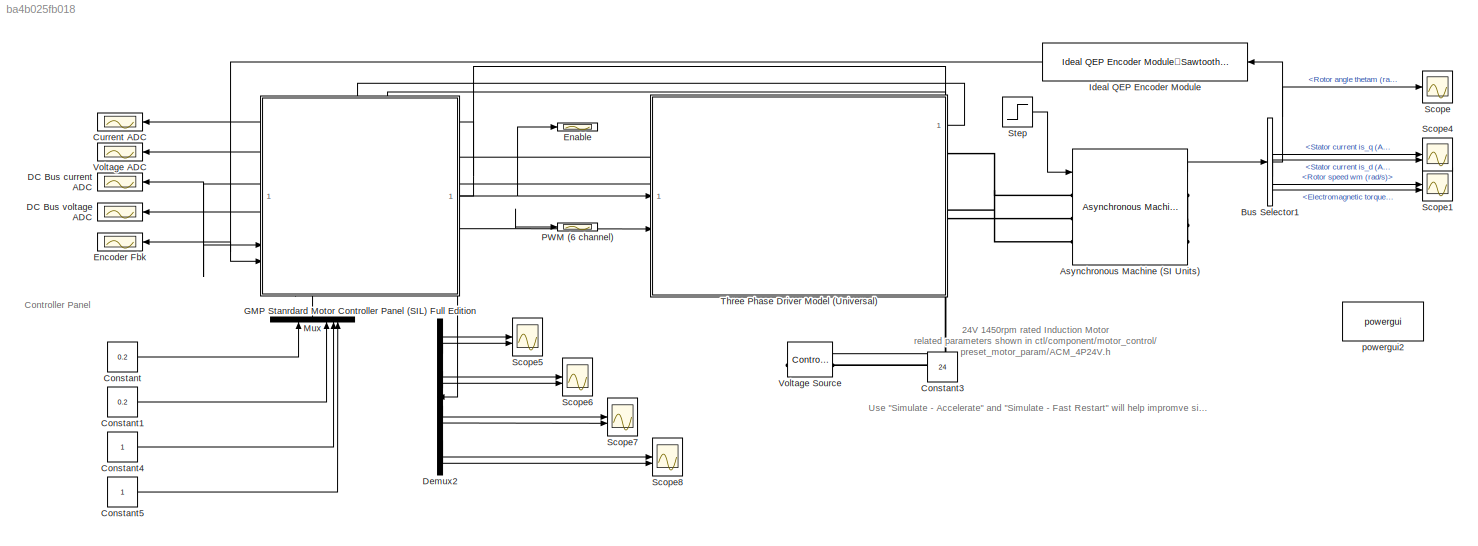
MODEL slx_ba4b025fb018
KIND model
CONFIG AbsTol = auto
CONFIG EnableMultiTasking = off
CONFIG FixedStep = auto
CONFIG MaxStep = auto
CONFIG MinStep = auto
CONFIG RelTol = 1e-3
CONFIG SampleTimeConstraint = Unconstrained
CONFIG SolverName = VariableStepAuto
CONFIG StartTime = 0.0
CONFIG StopTime = 2
BLOCK [Reference] Asynchronous Machine (SI Units)  REF=spsAsynchronousMachineSIUnitsLib/Asynchronous Machine
SI Units
  LibrarySourceBlock = sps_lib/Electrical Machines/Asynchronous Machine\nSI Units
  SourceBlock = spsAsynchronousMachineSIUnitsLib/Asynchronous Machine\nSI Units
  SourceType = Asynchronous Machine
BLOCK [BusSelector] Bus Selector1
  OutputSignals = Rotor angle thetam (rad),Stator current is_q (A),Stator current is_d (A),Rotor speed wm (rad/s),Electromagnetic torque Te (N*m)
BLOCK [Constant] Constant
  Value = 0.2
BLOCK [Constant] Constant1
  Value = 0.2
BLOCK [Constant] Constant3
  NameLocation = top
  Value = 24
BLOCK [Constant] Constant4
BLOCK [Constant] Constant5
BLOCK [Scope] Current ADC
  Floating = off
  NumInputPorts = 1
  ScopeSpecificationString = Simulink.scopes.TimeScopeBlockCfg('CurrentConfiguration', extmgr.ConfigurationSet(extmgr.Configuration('Core','General UI',true),extmgr.Configuration('Core','Source UI',true),extmgr.Configuration('Sources','WiredSimulink',true,'DataLoggingVariableName','ScopeData4'),extmgr.Configuration('Visuals','Time Domain',true,'SerializedDisplays',{struct('MinYLimReal','1963.00000','MaxYLimReal','2133.00000',...<+1699ch>
BLOCK [Scope] DC Bus current ADC
  Floating = off
  NumInputPorts = 1
  ScopeSpecificationString = Simulink.scopes.TimeScopeBlockCfg('CurrentConfiguration', extmgr.ConfigurationSet(extmgr.Configuration('Core','General UI',true),extmgr.Configuration('Core','Source UI',true),extmgr.Configuration('Sources','WiredSimulink',true,'DataLoggingVariableName','ScopeData7'),extmgr.Configuration('Visuals','Time Domain',true),extmgr.Configuration('Tools','Plot Navigation',true),extmgr.Configuration('Tools',...<+40ch>
BLOCK [Scope] DC Bus voltage ADC
  Floating = off
  NumInputPorts = 1
  ScopeSpecificationString = Simulink.scopes.TimeScopeBlockCfg('CurrentConfiguration', extmgr.ConfigurationSet(extmgr.Configuration('Core','General UI',true),extmgr.Configuration('Core','Source UI',true),extmgr.Configuration('Sources','WiredSimulink',true,'DataLoggingVariableName','ScopeData6'),extmgr.Configuration('Visuals','Time Domain',true),extmgr.Configuration('Tools','Plot Navigation',true),extmgr.Configuration('Tools',...<+40ch>
BLOCK [Demux] Demux2
  Outputs = 8
BLOCK [Scope] Enable
  Floating = off
  NumInputPorts = 1
  ScopeSpecificationString = Simulink.scopes.TimeScopeBlockCfg('CurrentConfiguration', extmgr.ConfigurationSet(extmgr.Configuration('Core','General UI',true),extmgr.Configuration('Core','Source UI',true),extmgr.Configuration('Sources','WiredSimulink',true,'DataLoggingVariableName','ScopeData3'),extmgr.Configuration('Visuals','Time Domain',true,'SerializedDisplays',{struct('MinYLimReal','-650.5','MaxYLimReal','5854.5','YLabelR...<+1726ch>
BLOCK [Scope] Encoder Fbk
  Floating = off
  NumInputPorts = 1
  ScopeSpecificationString = Simulink.scopes.TimeScopeBlockCfg('CurrentConfiguration', extmgr.ConfigurationSet(extmgr.Configuration('Core','General UI',true),extmgr.Configuration('Core','Source UI',true),extmgr.Configuration('Sources','WiredSimulink',true,'DataLoggingVariableName','ScopeData8'),extmgr.Configuration('Visuals','Time Domain',true,'SerializedDisplays',{struct('MinYLimReal','-2047.875','MaxYLimReal','18430.875','Y...<+1600ch>
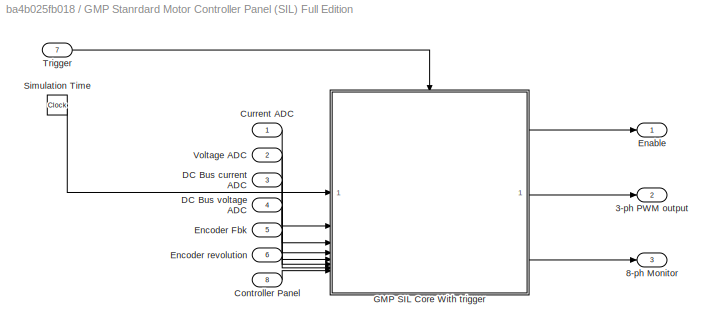
BLOCK [SubSystem] GMP Stanrdard Motor Controller Panel (SIL) Full Edition
  PortSchema = {"entries":[{"content":{"sides":[{"content":{"connectorIds":["In1","In2","In3","In4","In5","In6"]},"type":"ConnectorPlacement.EquallySpacedRectSide","uuid":"45c67bc9-9540-469a-a4ac-1e12eb9acca3"},{"content":{"connectorIds":["Out1","Out2"],"side":"RIGHT"},"type":"ConnectorPlacement.EquallySpacedRectSide","uuid":"a17116b4-0460-48ab-8ada-a785da6c5e29"},{"content":{"connectorIds":["In7"],"side":"TOP"}...<+438ch>
BLOCK [Outport] GMP Stanrdard Motor Controller Panel (SIL) Full Edition/3-ph PWM output
  Port = 2
BLOCK [Outport] GMP Stanrdard Motor Controller Panel (SIL) Full Edition/8-ph Monitor
  Port = 3
BLOCK [Inport] GMP Stanrdard Motor Controller Panel (SIL) Full Edition/Controller Panel
  Port = 8
BLOCK [Inport] GMP Stanrdard Motor Controller Panel (SIL) Full Edition/Current ADC
BLOCK [Inport] GMP Stanrdard Motor Controller Panel (SIL) Full Edition/DC Bus current ADC
  Port = 3
BLOCK [Inport] GMP Stanrdard Motor Controller Panel (SIL) Full Edition/DC Bus voltage ADC
  Port = 4
BLOCK [Outport] GMP Stanrdard Motor Controller Panel (SIL) Full Edition/Enable
BLOCK [Inport] GMP Stanrdard Motor Controller Panel (SIL) Full Edition/Encoder Fbk
  Port = 5
BLOCK [Inport] GMP Stanrdard Motor Controller Panel (SIL) Full Edition/Encoder revolution
  Port = 6
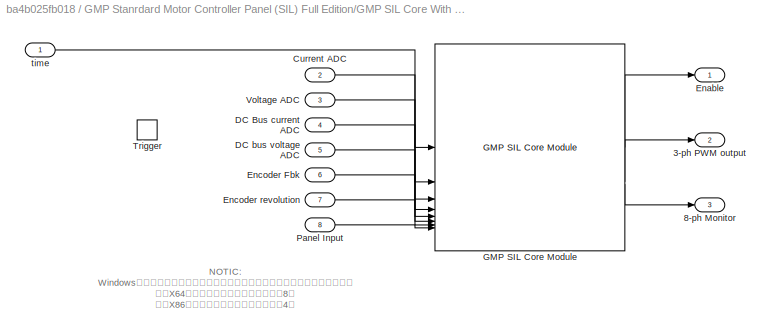
BLOCK [SubSystem] GMP Stanrdard Motor Controller Panel (SIL) Full Edition/GMP SIL Core With trigger
BLOCK [Outport] GMP Stanrdard Motor Controller Panel (SIL) Full Edition/GMP SIL Core With trigger/3-ph PWM output
  Port = 2
BLOCK [Outport] GMP Stanrdard Motor Controller Panel (SIL) Full Edition/GMP SIL Core With trigger/8-ph Monitor
  Port = 3
BLOCK [Inport] GMP Stanrdard Motor Controller Panel (SIL) Full Edition/GMP SIL Core With trigger/Current ADC
  Port = 2
BLOCK [Inport] GMP Stanrdard Motor Controller Panel (SIL) Full Edition/GMP SIL Core With trigger/DC Bus current ADC
  Port = 4
BLOCK [Inport] GMP Stanrdard Motor Controller Panel (SIL) Full Edition/GMP SIL Core With trigger/DC bus voltage ADC
  Port = 5
BLOCK [Outport] GMP Stanrdard Motor Controller Panel (SIL) Full Edition/GMP SIL Core With trigger/Enable
BLOCK [Inport] GMP Stanrdard Motor Controller Panel (SIL) Full Edition/GMP SIL Core With trigger/Encoder Fbk
  Port = 6
BLOCK [Inport] GMP Stanrdard Motor Controller Panel (SIL) Full Edition/GMP SIL Core With trigger/Encoder revolution
  Port = 7
BLOCK [Reference] GMP Stanrdard Motor Controller Panel (SIL) Full Edition/GMP SIL Core With trigger/GMP SIL Core Module  REF=gmp_sil_core_pack/GMP SIL Core Module
  SourceBlock = gmp_sil_core_pack/GMP SIL Core Module
  SourceProductName = GMP SIL Core Utilities
  SourceType = GMP CTL SIL Core
BLOCK [Inport] GMP Stanrdard Motor Controller Panel (SIL) Full Edition/GMP SIL Core With trigger/Panel Input
  Port = 8
BLOCK [TriggerPort] GMP Stanrdard Motor Controller Panel (SIL) Full Edition/GMP SIL Core With trigger/Trigger
  PortDimensions = 1
  StatesWhenEnabling = held
  VariantControl = (inherit)
BLOCK [Inport] GMP Stanrdard Motor Controller Panel (SIL) Full Edition/GMP SIL Core With trigger/Voltage ADC
  Port = 3
BLOCK [Inport] GMP Stanrdard Motor Controller Panel (SIL) Full Edition/GMP SIL Core With trigger/time
BLOCK [Clock] GMP Stanrdard Motor Controller Panel (SIL) Full Edition/Simulation Time
BLOCK [Inport] GMP Stanrdard Motor Controller Panel (SIL) Full Edition/Trigger
  Port = 7
BLOCK [Inport] GMP Stanrdard Motor Controller Panel (SIL) Full Edition/Voltage ADC
  Port = 2
BLOCK [Reference] Ideal QEP Encoder Module  REF=peripheral_utilities/Ideal QEP Encoder Module（Sawtooth input, ramp input）
  NameLocation = top
  SourceBlock = peripheral_utilities/Ideal QEP Encoder Module（Sawtooth input, ramp input）
  SourceProductName = Virtual Peripheral Utilities
BLOCK [Mux] Mux
  DisplayOption = bar
  NameLocation = right
BLOCK [Scope] PWM (6 channel)
  Floating = off
  NumInputPorts = 1
  ScopeSpecificationString = Simulink.scopes.TimeScopeBlockCfg('CurrentConfiguration', extmgr.ConfigurationSet(extmgr.Configuration('Core','General UI',true),extmgr.Configuration('Core','Source UI',true),extmgr.Configuration('Sources','WiredSimulink',true,'DataLoggingVariableName','ScopeData4'),extmgr.Configuration('Visuals','Time Domain',true,'SerializedDisplays',{struct('MinYLimReal','-750.00000','MaxYLimReal','6750.00000',...<+1750ch>
BLOCK [Scope] Scope
  Floating = off
  NumInputPorts = 1
  ScopeSpecificationString = Simulink.scopes.TimeScopeBlockCfg('CurrentConfiguration', extmgr.ConfigurationSet(extmgr.Configuration('Core','General UI',true),extmgr.Configuration('Core','Source UI',true),extmgr.Configuration('Sources','WiredSimulink',true,'DataLoggingVariableName','ScopeData1'),extmgr.Configuration('Visuals','Time Domain',true,'SerializedDisplays',{struct('MinYLimReal','-8.4093','MaxYLimReal','75.68219','YLab...<+1476ch>
BLOCK [Scope] Scope1
  Floating = off
  NumInputPorts = 2
  ScopeSpecificationString = Simulink.scopes.TimeScopeBlockCfg('CurrentConfiguration', extmgr.ConfigurationSet(extmgr.Configuration('Core','General UI',true),extmgr.Configuration('Core','Source UI',true),extmgr.Configuration('Sources','WiredSimulink',true,'DataLoggingVariableName','ScopeData2'),extmgr.Configuration('Visuals','Time Domain',true,'SerializedDisplays',{struct('MinYLimReal','-10.21772','MaxYLimReal','75.27898','YL...<+1560ch>
BLOCK [Scope] Scope4
  Floating = off
  NumInputPorts = 2
  ScopeSpecificationString = Simulink.scopes.TimeScopeBlockCfg('CurrentConfiguration', extmgr.ConfigurationSet(extmgr.Configuration('Core','General UI',true),extmgr.Configuration('Core','Source UI',true),extmgr.Configuration('Sources','WiredSimulink',true,'DataLoggingVariableName','ScopeData3'),extmgr.Configuration('Visuals','Time Domain',true,'SerializedDisplays',{struct('MinYLimReal','-3.2894','MaxYLimReal','4.69202','YLabe...<+1601ch>
BLOCK [Scope] Scope5
  Floating = off
  NumInputPorts = 2
  ScopeSpecificationString = Simulink.scopes.TimeScopeBlockCfg('CurrentConfiguration', extmgr.ConfigurationSet(extmgr.Configuration('Core','General UI',true),extmgr.Configuration('Core','Source UI',true),extmgr.Configuration('Sources','WiredSimulink',true,'DataLoggingVariableName','ScopeData10'),extmgr.Configuration('Visuals','Time Domain',true,'SerializedDisplays',{struct('MinYLimReal','-0.75003','MaxYLimReal','0.75031','YLa...<+1664ch>
BLOCK [Scope] Scope6
  Floating = off
  NumInputPorts = 2
  ScopeSpecificationString = Simulink.scopes.TimeScopeBlockCfg('CurrentConfiguration', extmgr.ConfigurationSet(extmgr.Configuration('Core','General UI',true),extmgr.Configuration('Core','Source UI',true),extmgr.Configuration('Sources','WiredSimulink',true,'DataLoggingVariableName','ScopeData11'),extmgr.Configuration('Visuals','Time Domain',true,'SerializedDisplays',{struct('MinYLimReal','-2.6081','MaxYLimReal','0.62225','YLab...<+1680ch>
BLOCK [Scope] Scope7
  Floating = off
  NumInputPorts = 2
  ScopeSpecificationString = Simulink.scopes.TimeScopeBlockCfg('CurrentConfiguration', extmgr.ConfigurationSet(extmgr.Configuration('Core','General UI',true),extmgr.Configuration('Core','Source UI',true),extmgr.Configuration('Sources','WiredSimulink',true,'DataLoggingVariableName','ScopeData1'),extmgr.Configuration('Visuals','Time Domain',true,'SerializedDisplays',{struct('MinYLimReal','-1.25','MaxYLimReal','1.25','YLabelReal...<+1662ch>
BLOCK [Scope] Scope8
  Floating = off
  NumInputPorts = 2
  ScopeSpecificationString = Simulink.scopes.TimeScopeBlockCfg('CurrentConfiguration', extmgr.ConfigurationSet(extmgr.Configuration('Core','General UI',true),extmgr.Configuration('Core','Source UI',true),extmgr.Configuration('Sources','WiredSimulink',true,'DataLoggingVariableName','ScopeData2'),extmgr.Configuration('Visuals','Time Domain',true,'SerializedDisplays',{struct('MinYLimReal','-2049.18175','MaxYLimReal','18431.02019...<+1709ch>
BLOCK [Step] Step
  After = 0.001
  SampleTime = 0
  Time = 0.5
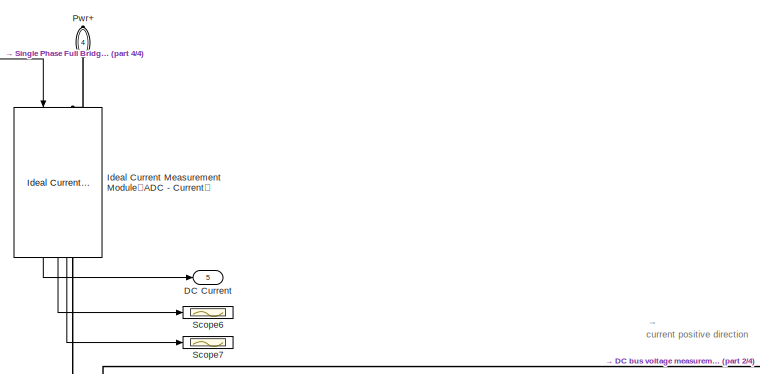
[diagram: Three Phase Driver Model (Universal) - part 1/4, top center region]
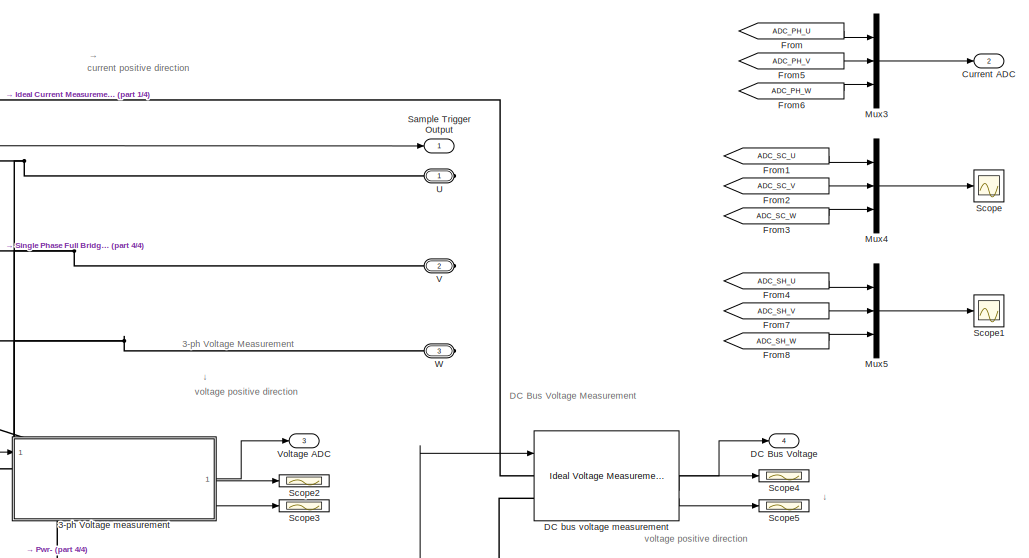
[diagram: Three Phase Driver Model (Universal) - part 2/4, middle right region]
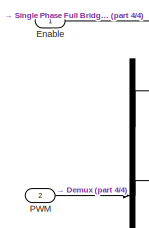
[diagram: Three Phase Driver Model (Universal) - part 3/4, middle left region]
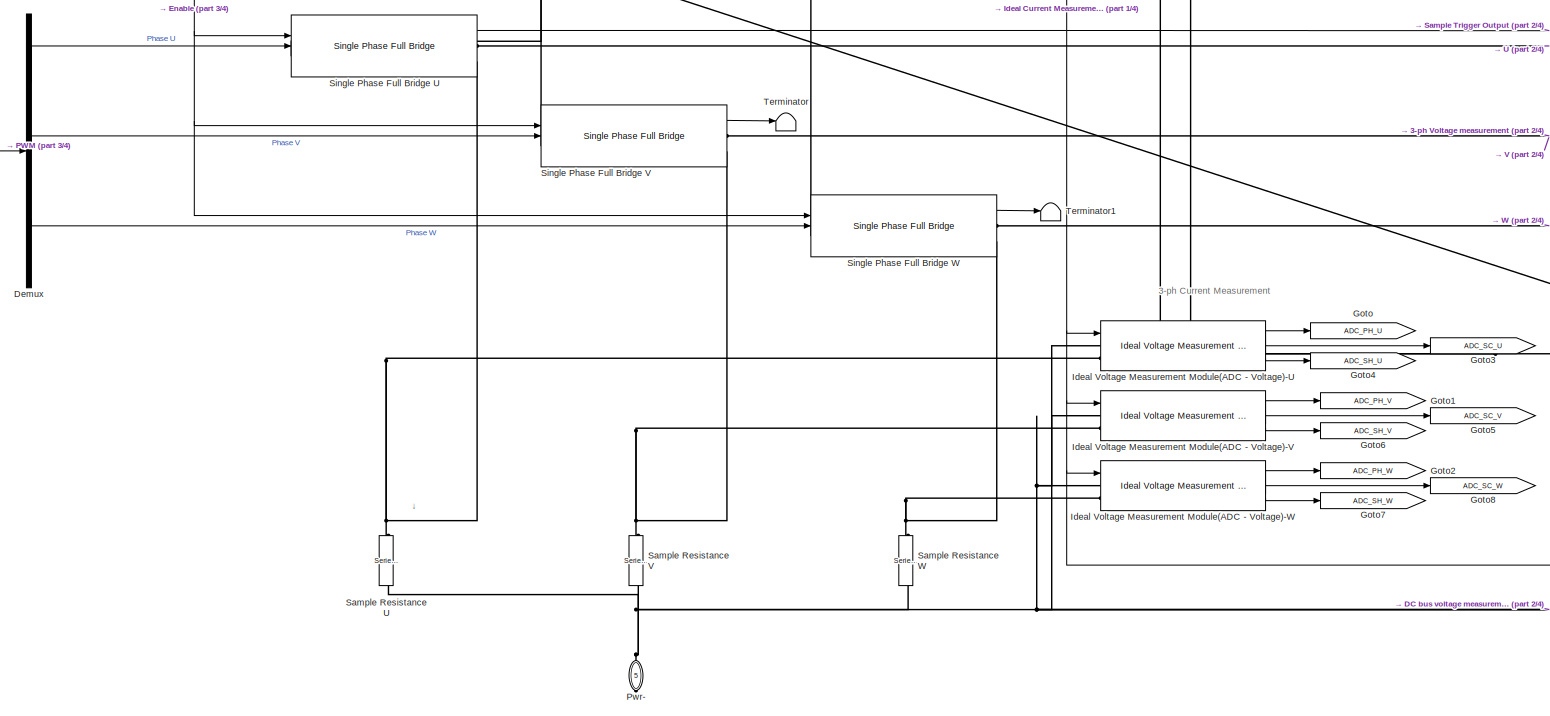
[diagram: Three Phase Driver Model (Universal) - part 4/4, bottom left region]
BLOCK [SubSystem] Three Phase Driver Model (Universal)
  AncestorBlock = peripheral_utilities/Three Phase Driver Model (Universal)
  PortSchema = {"entries":[{"content":{"sides":[{"content":{"connectorIds":["In1","In2"]},"type":"ConnectorPlacement.EquallySpacedRectSide","uuid":"3f4c86ad-0582-4f47-8583-a8af9a7f9adc"},{"content":{"connectorIds":["Out1","RConn1","RConn2","RConn3"],"side":"RIGHT"},"type":"ConnectorPlacement.EquallySpacedRectSide","uuid":"ae91f325-3014-4188-9063-296f4d5623fa"},{"content":{"connectorIds":["Out2","Out3","Out4","Ou...<+461ch>
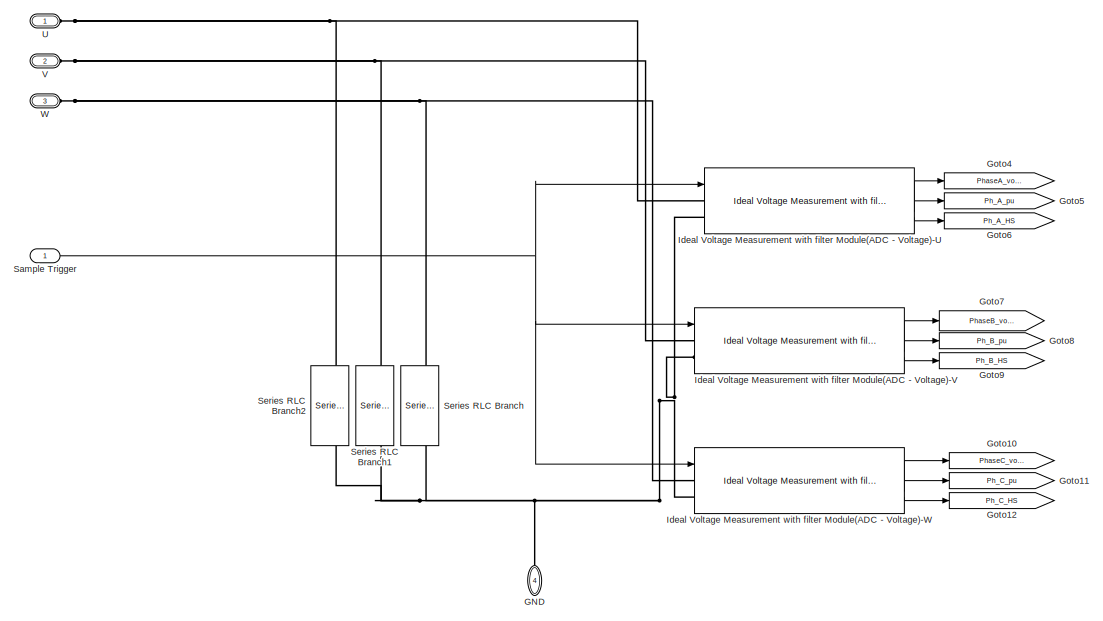
[diagram: Three Phase Driver Model (Universal)/3-ph Voltage measurement - part 1/2, center side, full height]
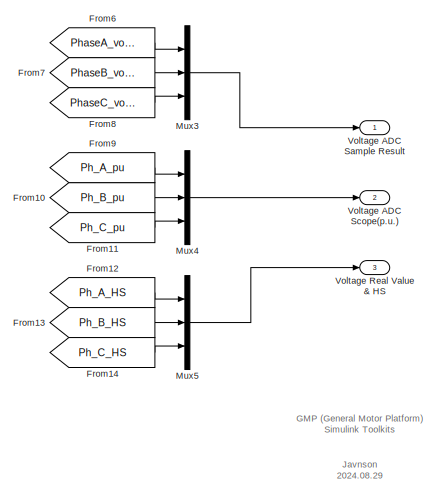
[diagram: Three Phase Driver Model (Universal)/3-ph Voltage measurement - part 2/2, middle right region]
BLOCK [SubSystem] Three Phase Driver Model (Universal)/3-ph Voltage measurement
  AncestorBlock = peripheral_utilities/Three Phases Voltage (ph-gnd) Measurement with Filter
  PortSchema = {"entries":[{"content":{"sides":[{"content":{"connectorIds":["In1"]},"type":"ConnectorPlacement.EquallySpacedRectSide","uuid":"ae4f4612-c092-4fa0-8a43-5c9e823110e3"},{"content":{"connectorIds":["Out1","Out2","Out3"],"side":"RIGHT"},"type":"ConnectorPlacement.EquallySpacedRectSide","uuid":"6db15ef0-d33a-4775-b4e6-14a566796673"},{"content":{"connectorIds":["LConn1","LConn2","LConn3","LConn4"],"side"...<+289ch>
BLOCK [From] Three Phase Driver Model (Universal)/3-ph Voltage measurement/From10
  GotoTag = Ph_B_pu
BLOCK [From] Three Phase Driver Model (Universal)/3-ph Voltage measurement/From11
  GotoTag = Ph_C_pu
BLOCK [From] Three Phase Driver Model (Universal)/3-ph Voltage measurement/From12
  GotoTag = Ph_A_HS
BLOCK [From] Three Phase Driver Model (Universal)/3-ph Voltage measurement/From13
  GotoTag = Ph_B_HS
BLOCK [From] Three Phase Driver Model (Universal)/3-ph Voltage measurement/From14
  GotoTag = Ph_C_HS
BLOCK [From] Three Phase Driver Model (Universal)/3-ph Voltage measurement/From6
  GotoTag = PhaseA_voltage
BLOCK [From] Three Phase Driver Model (Universal)/3-ph Voltage measurement/From7
  GotoTag = PhaseB_voltage
BLOCK [From] Three Phase Driver Model (Universal)/3-ph Voltage measurement/From8
  GotoTag = PhaseC_voltage
BLOCK [From] Three Phase Driver Model (Universal)/3-ph Voltage measurement/From9
  GotoTag = Ph_A_pu
BLOCK [PMIOPort] Three Phase Driver Model (Universal)/3-ph Voltage measurement/GND
  NameLocation = right
  Port = 4
  Side = Left
BLOCK [Goto] Three Phase Driver Model (Universal)/3-ph Voltage measurement/Goto10
  GotoTag = PhaseC_voltage
BLOCK [Goto] Three Phase Driver Model (Universal)/3-ph Voltage measurement/Goto11
  GotoTag = Ph_C_pu
BLOCK [Goto] Three Phase Driver Model (Universal)/3-ph Voltage measurement/Goto12
  GotoTag = Ph_C_HS
BLOCK [Goto] Three Phase Driver Model (Universal)/3-ph Voltage measurement/Goto4
  GotoTag = PhaseA_voltage
BLOCK [Goto] Three Phase Driver Model (Universal)/3-ph Voltage measurement/Goto5
  GotoTag = Ph_A_pu
BLOCK [Goto] Three Phase Driver Model (Universal)/3-ph Voltage measurement/Goto6
  GotoTag = Ph_A_HS
BLOCK [Goto] Three Phase Driver Model (Universal)/3-ph Voltage measurement/Goto7
  GotoTag = PhaseB_voltage
BLOCK [Goto] Three Phase Driver Model (Universal)/3-ph Voltage measurement/Goto8
  GotoTag = Ph_B_pu
BLOCK [Goto] Three Phase Driver Model (Universal)/3-ph Voltage measurement/Goto9
  GotoTag = Ph_B_HS
BLOCK [Reference] Three Phase Driver Model (Universal)/3-ph Voltage measurement/Ideal Voltage Measurement with filter Module(ADC - Voltage)-U  REF=peripheral_utilities/Ideal Voltage Measurement with filter Module(ADC - Voltage)
  SourceBlock = peripheral_utilities/Ideal Voltage Measurement with filter Module(ADC - Voltage)
  SourceProductName = Virtual Peripheral Utilities
BLOCK [Reference] Three Phase Driver Model (Universal)/3-ph Voltage measurement/Ideal Voltage Measurement with filter Module(ADC - Voltage)-V  REF=peripheral_utilities/Ideal Voltage Measurement with filter Module(ADC - Voltage)
  SourceBlock = peripheral_utilities/Ideal Voltage Measurement with filter Module(ADC - Voltage)
  SourceProductName = Virtual Peripheral Utilities
BLOCK [Reference] Three Phase Driver Model (Universal)/3-ph Voltage measurement/Ideal Voltage Measurement with filter Module(ADC - Voltage)-W  REF=peripheral_utilities/Ideal Voltage Measurement with filter Module(ADC - Voltage)
  SourceBlock = peripheral_utilities/Ideal Voltage Measurement with filter Module(ADC - Voltage)
  SourceProductName = Virtual Peripheral Utilities
BLOCK [Mux] Three Phase Driver Model (Universal)/3-ph Voltage measurement/Mux3
  DisplayOption = bar
  Inputs = 3
BLOCK [Mux] Three Phase Driver Model (Universal)/3-ph Voltage measurement/Mux4
  DisplayOption = bar
  Inputs = 3
BLOCK [Mux] Three Phase Driver Model (Universal)/3-ph Voltage measurement/Mux5
  DisplayOption = bar
  Inputs = 3
BLOCK [Inport] Three Phase Driver Model (Universal)/3-ph Voltage measurement/Sample Trigger
BLOCK [Reference] Three Phase Driver Model (Universal)/3-ph Voltage measurement/Series RLC Branch  REF=spsSeriesRLCBranchLib/Series RLC Branch
  NameLocation = left
  SourceBlock = spsSeriesRLCBranchLib/Series RLC Branch
  SourceType = Series RLC Branch
BLOCK [Reference] Three Phase Driver Model (Universal)/3-ph Voltage measurement/Series RLC Branch1  REF=spsSeriesRLCBranchLib/Series RLC Branch
  NameLocation = left
  SourceBlock = spsSeriesRLCBranchLib/Series RLC Branch
  SourceType = Series RLC Branch
BLOCK [Reference] Three Phase Driver Model (Universal)/3-ph Voltage measurement/Series RLC Branch2  REF=spsSeriesRLCBranchLib/Series RLC Branch
  NameLocation = left
  SourceBlock = spsSeriesRLCBranchLib/Series RLC Branch
  SourceType = Series RLC Branch
BLOCK [PMIOPort] Three Phase Driver Model (Universal)/3-ph Voltage measurement/U
  Side = Left
BLOCK [PMIOPort] Three Phase Driver Model (Universal)/3-ph Voltage measurement/V
  Port = 2
  Side = Left
BLOCK [Outport] Three Phase Driver Model (Universal)/3-ph Voltage measurement/Voltage ADC Sample Result
BLOCK [Outport] Three Phase Driver Model (Universal)/3-ph Voltage measurement/Voltage ADC Scope(p.u.)
  Port = 2
BLOCK [Outport] Three Phase Driver Model (Universal)/3-ph Voltage measurement/Voltage Real Value & HS
  Port = 3
BLOCK [PMIOPort] Three Phase Driver Model (Universal)/3-ph Voltage measurement/W
  Port = 3
  Side = Left
BLOCK [Outport] Three Phase Driver Model (Universal)/Current ADC
  Port = 2
BLOCK [Outport] Three Phase Driver Model (Universal)/DC Bus Voltage
  Port = 4
BLOCK [Outport] Three Phase Driver Model (Universal)/DC Current
  Port = 5
BLOCK [Reference] Three Phase Driver Model (Universal)/DC bus voltage measurement  REF=peripheral_utilities/Ideal Voltage Measurement Module(ADC - Voltage)
  SourceBlock = peripheral_utilities/Ideal Voltage Measurement Module(ADC - Voltage)
  SourceProductName = Virtual Peripheral Utilities
BLOCK [Demux] Three Phase Driver Model (Universal)/Demux
  Outputs = 3
BLOCK [Inport] Three Phase Driver Model (Universal)/Enable
BLOCK [From] Three Phase Driver Model (Universal)/From
  GotoTag = ADC_PH_U
BLOCK [From] Three Phase Driver Model (Universal)/From1
  GotoTag = ADC_SC_U
BLOCK [From] Three Phase Driver Model (Universal)/From2
  GotoTag = ADC_SC_V
BLOCK [From] Three Phase Driver Model (Universal)/From3
  GotoTag = ADC_SC_W
BLOCK [From] Three Phase Driver Model (Universal)/From4
  GotoTag = ADC_SH_U
BLOCK [From] Three Phase Driver Model (Universal)/From5
  GotoTag = ADC_PH_V
BLOCK [From] Three Phase Driver Model (Universal)/From6
  GotoTag = ADC_PH_W
BLOCK [From] Three Phase Driver Model (Universal)/From7
  GotoTag = ADC_SH_V
BLOCK [From] Three Phase Driver Model (Universal)/From8
  GotoTag = ADC_SH_W
BLOCK [Goto] Three Phase Driver Model (Universal)/Goto
  GotoTag = ADC_PH_U
BLOCK [Goto] Three Phase Driver Model (Universal)/Goto1
  GotoTag = ADC_PH_V
BLOCK [Goto] Three Phase Driver Model (Universal)/Goto2
  GotoTag = ADC_PH_W
BLOCK [Goto] Three Phase Driver Model (Universal)/Goto3
  GotoTag = ADC_SC_U
BLOCK [Goto] Three Phase Driver Model (Universal)/Goto4
  GotoTag = ADC_SH_U
BLOCK [Goto] Three Phase Driver Model (Universal)/Goto5
  GotoTag = ADC_SC_V
BLOCK [Goto] Three Phase Driver Model (Universal)/Goto6
  GotoTag = ADC_SH_V
BLOCK [Goto] Three Phase Driver Model (Universal)/Goto7
  GotoTag = ADC_SH_W
BLOCK [Goto] Three Phase Driver Model (Universal)/Goto8
  GotoTag = ADC_SC_W
BLOCK [Reference] Three Phase Driver Model (Universal)/Ideal Current Measurement Module（ADC - Current）  REF=peripheral_utilities/Ideal Current Measurement Module（ADC - Current）
  NameLocation = left
  SourceBlock = peripheral_utilities/Ideal Current Measurement Module（ADC - Current）
  SourceProductName = Virtual Peripheral Utilities
BLOCK [Reference] Three Phase Driver Model (Universal)/Ideal Voltage Measurement Module(ADC - Voltage)-U  REF=peripheral_utilities/Ideal Voltage Measurement Module(ADC - Voltage)
  SourceBlock = peripheral_utilities/Ideal Voltage Measurement Module(ADC - Voltage)
  SourceProductName = Virtual Peripheral Utilities
BLOCK [Reference] Three Phase Driver Model (Universal)/Ideal Voltage Measurement Module(ADC - Voltage)-V  REF=peripheral_utilities/Ideal Voltage Measurement Module(ADC - Voltage)
  SourceBlock = peripheral_utilities/Ideal Voltage Measurement Module(ADC - Voltage)
  SourceProductName = Virtual Peripheral Utilities
BLOCK [Reference] Three Phase Driver Model (Universal)/Ideal Voltage Measurement Module(ADC - Voltage)-W  REF=peripheral_utilities/Ideal Voltage Measurement Module(ADC - Voltage)
  SourceBlock = peripheral_utilities/Ideal Voltage Measurement Module(ADC - Voltage)
  SourceProductName = Virtual Peripheral Utilities
BLOCK [Mux] Three Phase Driver Model (Universal)/Mux3
  DisplayOption = bar
  Inputs = 3
BLOCK [Mux] Three Phase Driver Model (Universal)/Mux4
  DisplayOption = bar
  Inputs = 3
BLOCK [Mux] Three Phase Driver Model (Universal)/Mux5
  DisplayOption = bar
  Inputs = 3
BLOCK [Inport] Three Phase Driver Model (Universal)/PWM
  Port = 2
BLOCK [PMIOPort] Three Phase Driver Model (Universal)/Pwr+
  NameLocation = left
  Port = 4
  Side = Right
BLOCK [PMIOPort] Three Phase Driver Model (Universal)/Pwr-
  NameLocation = right
  Port = 5
  Side = Right
BLOCK [Reference] Three Phase Driver Model (Universal)/Sample Resistance U  REF=spsSeriesRLCBranchLib/Series RLC Branch
  NameLocation = left
  SourceBlock = spsSeriesRLCBranchLib/Series RLC Branch
  SourceType = Series RLC Branch
BLOCK [Reference] Three Phase Driver Model (Universal)/Sample Resistance V  REF=spsSeriesRLCBranchLib/Series RLC Branch
  NameLocation = left
  SourceBlock = spsSeriesRLCBranchLib/Series RLC Branch
  SourceType = Series RLC Branch
BLOCK [Reference] Three Phase Driver Model (Universal)/Sample Resistance W  REF=spsSeriesRLCBranchLib/Series RLC Branch
  NameLocation = left
  SourceBlock = spsSeriesRLCBranchLib/Series RLC Branch
  SourceType = Series RLC Branch
BLOCK [Outport] Three Phase Driver Model (Universal)/Sample Trigger Output
BLOCK [Scope] Three Phase Driver Model (Universal)/Scope
  Floating = off
  NumInputPorts = 1
  ScopeSpecificationString = Simulink.scopes.TimeScopeBlockCfg('CurrentConfiguration', extmgr.ConfigurationSet(extmgr.Configuration('Core','General UI',true),extmgr.Configuration('Core','Source UI',true),extmgr.Configuration('Sources','WiredSimulink',true),extmgr.Configuration('Visuals','Time Domain',true,'SerializedDisplays',{struct('MinYLimReal','0.44616','MaxYLimReal','0.5534','YLabelReal','','MinYLimMag','0.44616','MaxYLi...<+1635ch>
BLOCK [Scope] Three Phase Driver Model (Universal)/Scope1
  Floating = off
  NumInputPorts = 1
  ScopeSpecificationString = Simulink.scopes.TimeScopeBlockCfg('CurrentConfiguration', extmgr.ConfigurationSet(extmgr.Configuration('Core','General UI',true),extmgr.Configuration('Core','Source UI',true),extmgr.Configuration('Sources','WiredSimulink',true,'DataLoggingVariableName','ScopeData1'),extmgr.Configuration('Visuals','Time Domain',true,'SerializedDisplays',{struct('MinYLimReal','-0.00785','MaxYLimReal','0.00755','YLab...<+1705ch>
BLOCK [Scope] Three Phase Driver Model (Universal)/Scope2
  Floating = off
  NumInputPorts = 1
  ScopeSpecificationString = Simulink.scopes.TimeScopeBlockCfg('CurrentConfiguration', extmgr.ConfigurationSet(extmgr.Configuration('Core','General UI',true),extmgr.Configuration('Core','Source UI',true),extmgr.Configuration('Sources','WiredSimulink',true,'DataLoggingVariableName','ScopeData2'),extmgr.Configuration('Visuals','Time Domain',true,'SerializedDisplays',{struct('MinYLimReal','0.06157','MaxYLimReal','0.23652','YLabe...<+1582ch>
BLOCK [Scope] Three Phase Driver Model (Universal)/Scope3
  Floating = off
  NumInputPorts = 1
  ScopeSpecificationString = Simulink.scopes.TimeScopeBlockCfg('CurrentConfiguration', extmgr.ConfigurationSet(extmgr.Configuration('Core','General UI',true),extmgr.Configuration('Core','Source UI',true),extmgr.Configuration('Sources','WiredSimulink',true,'DataLoggingVariableName','ScopeData3'),extmgr.Configuration('Visuals','Time Domain',true,'SerializedDisplays',{struct('MinYLimReal','-2.45812','MaxYLimReal','14.44693','YLa...<+1681ch>
BLOCK [Scope] Three Phase Driver Model (Universal)/Scope4
  Floating = off
  NumInputPorts = 1
  ScopeSpecificationString = Simulink.scopes.TimeScopeBlockCfg('CurrentConfiguration', extmgr.ConfigurationSet(extmgr.Configuration('Core','General UI',true),extmgr.Configuration('Core','Source UI',true),extmgr.Configuration('Sources','WiredSimulink',true,'DataLoggingVariableName','ScopeData4'),extmgr.Configuration('Visuals','Time Domain',true),extmgr.Configuration('Tools','Plot Navigation',true),extmgr.Configuration('Tools',...<+40ch>
BLOCK [Scope] Three Phase Driver Model (Universal)/Scope5
  Floating = off
  NumInputPorts = 1
  ScopeSpecificationString = Simulink.scopes.TimeScopeBlockCfg('CurrentConfiguration', extmgr.ConfigurationSet(extmgr.Configuration('Core','General UI',true),extmgr.Configuration('Core','Source UI',true),extmgr.Configuration('Sources','WiredSimulink',true,'DataLoggingVariableName','ScopeData5'),extmgr.Configuration('Visuals','Time Domain',true,'SerializedDisplays',{struct('MinYLimReal','-3.00000','MaxYLimReal','27.00000','YLa...<+1588ch>
BLOCK [Scope] Three Phase Driver Model (Universal)/Scope6
  Floating = off
  NumInputPorts = 1
  ScopeSpecificationString = Simulink.scopes.TimeScopeBlockCfg('CurrentConfiguration', extmgr.ConfigurationSet(extmgr.Configuration('Core','General UI',true),extmgr.Configuration('Core','Source UI',true),extmgr.Configuration('Sources','WiredSimulink',true,'DataLoggingVariableName','ScopeData1'),extmgr.Configuration('Visuals','Time Domain',true),extmgr.Configuration('Tools','Plot Navigation',true),extmgr.Configuration('Tools',...<+40ch>
BLOCK [Scope] Three Phase Driver Model (Universal)/Scope7
  Floating = off
  NumInputPorts = 1
  ScopeSpecificationString = Simulink.scopes.TimeScopeBlockCfg('CurrentConfiguration', extmgr.ConfigurationSet(extmgr.Configuration('Core','General UI',true),extmgr.Configuration('Core','Source UI',true),extmgr.Configuration('Sources','WiredSimulink',true,'DataLoggingVariableName','ScopeData2'),extmgr.Configuration('Visuals','Time Domain',true),extmgr.Configuration('Tools','Plot Navigation',true),extmgr.Configuration('Tools',...<+40ch>
BLOCK [Reference] Three Phase Driver Model (Universal)/Single Phase Full Bridge U  REF=peripheral_utilities/Single Phase Full Bridge
  SourceBlock = peripheral_utilities/Single Phase Full Bridge
  SourceProductName = Virtual Peripheral Utilities
BLOCK [Reference] Three Phase Driver Model (Universal)/Single Phase Full Bridge V  REF=peripheral_utilities/Single Phase Full Bridge
  SourceBlock = peripheral_utilities/Single Phase Full Bridge
  SourceProductName = Virtual Peripheral Utilities
BLOCK [Reference] Three Phase Driver Model (Universal)/Single Phase Full Bridge W  REF=peripheral_utilities/Single Phase Full Bridge
  SourceBlock = peripheral_utilities/Single Phase Full Bridge
  SourceProductName = Virtual Peripheral Utilities
BLOCK [Terminator] Three Phase Driver Model (Universal)/Terminator
BLOCK [Terminator] Three Phase Driver Model (Universal)/Terminator1
BLOCK [PMIOPort] Three Phase Driver Model (Universal)/U
  Side = Right
BLOCK [PMIOPort] Three Phase Driver Model (Universal)/V
  Port = 2
  Side = Right
BLOCK [Outport] Three Phase Driver Model (Universal)/Voltage ADC
  Port = 3
BLOCK [PMIOPort] Three Phase Driver Model (Universal)/W
  Port = 3
  Side = Right
BLOCK [Scope] Voltage ADC
  Floating = off
  NumInputPorts = 1
  ScopeSpecificationString = Simulink.scopes.TimeScopeBlockCfg('CurrentConfiguration', extmgr.ConfigurationSet(extmgr.Configuration('Core','General UI',true),extmgr.Configuration('Core','Source UI',true),extmgr.Configuration('Sources','WiredSimulink',true,'DataLoggingVariableName','ScopeData5'),extmgr.Configuration('Visuals','Time Domain',true,'SerializedDisplays',{struct('MinYLimReal','-10','MaxYLimReal','10','YLabelReal',''...<+849ch>
BLOCK [Reference] Voltage Source  REF=spsControlledVoltageSourceLib/Controlled Voltage Source
  LibrarySourceBlock = sps_lib/Sources/Controlled Voltage Source
  SourceBlock = spsControlledVoltageSourceLib/Controlled Voltage Source
  SourceType = Controlled Voltage Source
BLOCK [Reference] powergui2  REF=spspowerguiLib/powergui
  LibrarySourceBlock = sps_lib/powergui
  Priority = 1
  SourceBlock = spspowerguiLib/powergui
  SourceType = PSB option menu block
ANNOTATION (root): 24V 1450rpm rated Induction Motor related parameters shown in ctl/component/motor_control/ preset_motor_param/ACM_4P24V.h
ANNOTATION (root): Controller Panel
ANNOTATION (root): Use "Simulate - Accelerate" and "Simulate - Fast Restart" will help impromve simulating efficient.
ANNOTATION GMP Stanrdard Motor Controller Panel (SIL) Full Edition/GMP SIL Core With trigger: NOTIC: Windows平台下必须设置为正确的内存对齐方式，否则会导致收到的数据乱码！ 对于X64的编译方式，默认的内存对齐为8； 对于X86的编译方式，默认的内存对齐为4。
ANNOTATION Three Phase Driver Model (Universal): 3-ph Current Measurement
ANNOTATION Three Phase Driver Model (Universal): 3-ph Voltage Measurement
ANNOTATION Three Phase Driver Model (Universal): →
ANNOTATION Three Phase Driver Model (Universal): ↓
ANNOTATION Three Phase Driver Model (Universal): DC Bus Voltage Measurement
ANNOTATION Three Phase Driver Model (Universal): current positive direction
ANNOTATION Three Phase Driver Model (Universal): voltage positive direction
ANNOTATION Three Phase Driver Model (Universal)/3-ph Voltage measurement: GMP (General Motor Platform) Simulink Toolkits
ANNOTATION Three Phase Driver Model (Universal)/3-ph Voltage measurement: Javnson 2024.08.29
LINE Asynchronous Machine (SI Units):1 -> Bus Selector1:1
NET Bus Selector1:1 -> Ideal QEP Encoder Module:1, Scope:1
LINE Bus Selector1:2 -> Scope4:1
LINE Bus Selector1:3 -> Scope4:2
LINE Bus Selector1:4 -> Scope1:1
LINE Bus Selector1:5 -> Scope1:2
LINE Constant1:1 -> Mux:2
LINE Constant3:1 -> Voltage Source:1
LINE Constant4:1 -> Mux:3
LINE Constant5:1 -> Mux:4
LINE Constant:1 -> Mux:1
LINE Demux2:1 -> Scope5:1
LINE Demux2:2 -> Scope5:2
LINE Demux2:3 -> Scope6:1
LINE Demux2:4 -> Scope6:2
LINE Demux2:5 -> Scope7:1
LINE Demux2:6 -> Scope7:2
LINE Demux2:7 -> Scope8:1
LINE Demux2:8 -> Scope8:2
LINE GMP Stanrdard Motor Controller Panel (SIL) Full Edition/Controller Panel:1 -> GMP Stanrdard Motor Controller Panel (SIL) Full Edition/GMP SIL Core With trigger:8
LINE GMP Stanrdard Motor Controller Panel (SIL) Full Edition/Current ADC:1 -> GMP Stanrdard Motor Controller Panel (SIL) Full Edition/GMP SIL Core With trigger:2
LINE GMP Stanrdard Motor Controller Panel (SIL) Full Edition/DC Bus current ADC:1 -> GMP Stanrdard Motor Controller Panel (SIL) Full Edition/GMP SIL Core With trigger:4
LINE GMP Stanrdard Motor Controller Panel (SIL) Full Edition/DC Bus voltage ADC:1 -> GMP Stanrdard Motor Controller Panel (SIL) Full Edition/GMP SIL Core With trigger:5
LINE GMP Stanrdard Motor Controller Panel (SIL) Full Edition/Encoder Fbk:1 -> GMP Stanrdard Motor Controller Panel (SIL) Full Edition/GMP SIL Core With trigger:6
LINE GMP Stanrdard Motor Controller Panel (SIL) Full Edition/Encoder revolution:1 -> GMP Stanrdard Motor Controller Panel (SIL) Full Edition/GMP SIL Core With trigger:7
LINE GMP Stanrdard Motor Controller Panel (SIL) Full Edition/GMP SIL Core With trigger/Current ADC:1 -> GMP Stanrdard Motor Controller Panel (SIL) Full Edition/GMP SIL Core With trigger/GMP SIL Core Module:2
LINE GMP Stanrdard Motor Controller Panel (SIL) Full Edition/GMP SIL Core With trigger/DC Bus current ADC:1 -> GMP Stanrdard Motor Controller Panel (SIL) Full Edition/GMP SIL Core With trigger/GMP SIL Core Module:4
LINE GMP Stanrdard Motor Controller Panel (SIL) Full Edition/GMP SIL Core With trigger/DC bus voltage ADC:1 -> GMP Stanrdard Motor Controller Panel (SIL) Full Edition/GMP SIL Core With trigger/GMP SIL Core Module:5
LINE GMP Stanrdard Motor Controller Panel (SIL) Full Edition/GMP SIL Core With trigger/Encoder Fbk:1 -> GMP Stanrdard Motor Controller Panel (SIL) Full Edition/GMP SIL Core With trigger/GMP SIL Core Module:6
LINE GMP Stanrdard Motor Controller Panel (SIL) Full Edition/GMP SIL Core With trigger/Encoder revolution:1 -> GMP Stanrdard Motor Controller Panel (SIL) Full Edition/GMP SIL Core With trigger/GMP SIL Core Module:7
LINE GMP Stanrdard Motor Controller Panel (SIL) Full Edition/GMP SIL Core With trigger/GMP SIL Core Module:1 -> GMP Stanrdard Motor Controller Panel (SIL) Full Edition/GMP SIL Core With trigger/Enable:1
LINE GMP Stanrdard Motor Controller Panel (SIL) Full Edition/GMP SIL Core With trigger/GMP SIL Core Module:2 -> GMP Stanrdard Motor Controller Panel (SIL) Full Edition/GMP SIL Core With trigger/3-ph PWM output:1
LINE GMP Stanrdard Motor Controller Panel (SIL) Full Edition/GMP SIL Core With trigger/GMP SIL Core Module:3 -> GMP Stanrdard Motor Controller Panel (SIL) Full Edition/GMP SIL Core With trigger/8-ph Monitor:1
LINE GMP Stanrdard Motor Controller Panel (SIL) Full Edition/GMP SIL Core With trigger/Panel Input:1 -> GMP Stanrdard Motor Controller Panel (SIL) Full Edition/GMP SIL Core With trigger/GMP SIL Core Module:8
LINE GMP Stanrdard Motor Controller Panel (SIL) Full Edition/GMP SIL Core With trigger/Voltage ADC:1 -> GMP Stanrdard Motor Controller Panel (SIL) Full Edition/GMP SIL Core With trigger/GMP SIL Core Module:3
LINE GMP Stanrdard Motor Controller Panel (SIL) Full Edition/GMP SIL Core With trigger/time:1 -> GMP Stanrdard Motor Controller Panel (SIL) Full Edition/GMP SIL Core With trigger/GMP SIL Core Module:1
LINE GMP Stanrdard Motor Controller Panel (SIL) Full Edition/GMP SIL Core With trigger:1 -> GMP Stanrdard Motor Controller Panel (SIL) Full Edition/Enable:1
LINE GMP Stanrdard Motor Controller Panel (SIL) Full Edition/GMP SIL Core With trigger:2 -> GMP Stanrdard Motor Controller Panel (SIL) Full Edition/3-ph PWM output:1
LINE GMP Stanrdard Motor Controller Panel (SIL) Full Edition/GMP SIL Core With trigger:3 -> GMP Stanrdard Motor Controller Panel (SIL) Full Edition/8-ph Monitor:1
LINE GMP Stanrdard Motor Controller Panel (SIL) Full Edition/Simulation Time:1 -> GMP Stanrdard Motor Controller Panel (SIL) Full Edition/GMP SIL Core With trigger:1
LINE GMP Stanrdard Motor Controller Panel (SIL) Full Edition/Trigger:1 -> GMP Stanrdard Motor Controller Panel (SIL) Full Edition/GMP SIL Core With trigger:trigger
LINE GMP Stanrdard Motor Controller Panel (SIL) Full Edition/Voltage ADC:1 -> GMP Stanrdard Motor Controller Panel (SIL) Full Edition/GMP SIL Core With trigger:3
NET GMP Stanrdard Motor Controller Panel (SIL) Full Edition:1 -> Enable:1, Three Phase Driver Model (Universal):1
NET GMP Stanrdard Motor Controller Panel (SIL) Full Edition:2 -> PWM (6 channel):1, Three Phase Driver Model (Universal):2
LINE GMP Stanrdard Motor Controller Panel (SIL) Full Edition:3 -> Demux2:1
NET Ideal QEP Encoder Module:1 -> Encoder Fbk:1, GMP Stanrdard Motor Controller Panel (SIL) Full Edition:5
LINE Mux:1 -> GMP Stanrdard Motor Controller Panel (SIL) Full Edition:8
LINE Step:1 -> Asynchronous Machine (SI Units):1
LINE Three Phase Driver Model (Universal):1 -> GMP Stanrdard Motor Controller Panel (SIL) Full Edition:7
NET Three Phase Driver Model (Universal):2 -> Current ADC:1, GMP Stanrdard Motor Controller Panel (SIL) Full Edition:1
NET Three Phase Driver Model (Universal):3 -> GMP Stanrdard Motor Controller Panel (SIL) Full Edition:2, Voltage ADC:1
NET Three Phase Driver Model (Universal):4 -> DC Bus voltage ADC:1, GMP Stanrdard Motor Controller Panel (SIL) Full Edition:4
NET Three Phase Driver Model (Universal):5 -> DC Bus current ADC:1, GMP Stanrdard Motor Controller Panel (SIL) Full Edition:3
PLINE Asynchronous Machine (SI Units):LConn1 -- Three Phase Driver Model (Universal):RConn1
PLINE Asynchronous Machine (SI Units):LConn2 -- Three Phase Driver Model (Universal):RConn2
PLINE Asynchronous Machine (SI Units):LConn3 -- Three Phase Driver Model (Universal):RConn3
PNET net1: Asynchronous Machine (SI Units):RConn1 -- Asynchronous Machine (SI Units):RConn2 -- Asynchronous Machine (SI Units):RConn3
PLINE Three Phase Driver Model (Universal):RConn4 -- Voltage Source:RConn1
PLINE Three Phase Driver Model (Universal):RConn5 -- Voltage Source:LConn1
note: NET lines group one-source signal fan-out (src -> all destinations, sorted); 1:1 wires keep LINE; PNET lines group multi-terminal physical nets as a canonical sorted terminal list (undirected conserving connections); 2-terminal nets keep the pairwise PLINE form
